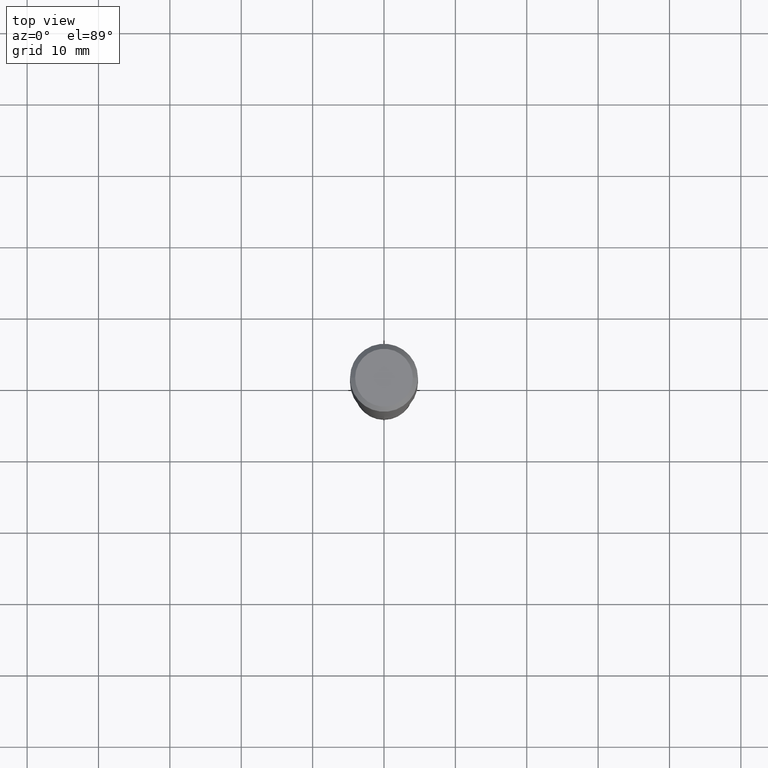
[diagram: clean part render]
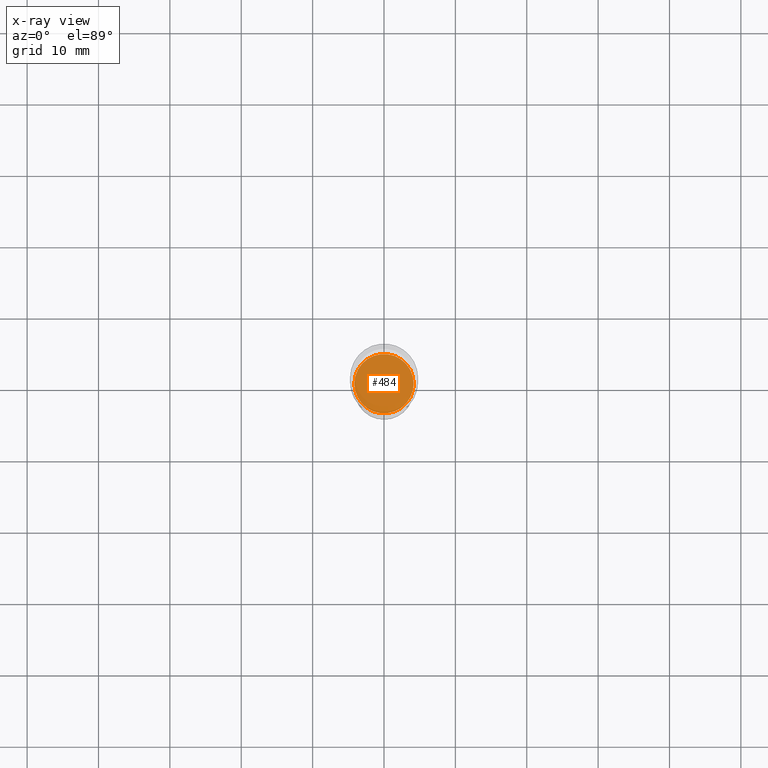
[diagram: x-ray — body ghosted, one internal face saturated and labeled with its STEP entity id]
A machine part, top view, then the same camera in x-ray: the body is ghosted and one INTERNAL B-rep face — a face not visible from any outside direction — is saturated and labeled: STEP entity #484.
In plain terms, the highlighted planar face has unit normal (-0, 0, 1).
Its self-contained STEP definition (entity closure, byte-faithful):
#30 = EDGE_CURVE ( 'NONE', #293, #356, #195, .T. ) ;
#44 = CARTESIAN_POINT ( 'NONE',  ( 4.699946498607213813E-29, -6.710277985122640475E-15, -1.921899999999999720 ) ) ;
#46 = CARTESIAN_POINT ( 'NONE',  ( 0.1635500000000000009, -7.852341531058229130E-15, -1.921899999999999720 ) ) ;
#64 = CARTESIAN_POINT ( 'NONE',  ( -0.1635500000000000009, -5.545536113612885610E-15, -1.921899999999999720 ) ) ;
#71 = DIRECTION ( 'NONE',  ( -2.438088387897960049E-29, 3.491481338843145188E-15, 1.000000000000000000 ) ) ;
#74 = CARTESIAN_POINT ( 'NONE',  ( 4.699946498607213813E-29, -6.710277985122640475E-15, -1.921899999999999720 ) ) ;
#105 = CIRCLE ( 'NONE', #315, 0.1635500000000000009 ) ;
#152 = EDGE_CURVE ( 'NONE', #356, #293, #105, .T. ) ;
#154 = DIRECTION ( 'NONE',  ( 1.000000000000000000, -6.982962677686265922E-15, 4.876176775795935793E-29 ) ) ;
#180 = PLANE ( 'NONE',  #351 ) ;
#187 = FACE_OUTER_BOUND ( 'NONE', #256, .T. ) ;
#195 = CIRCLE ( 'NONE', #393, 0.1635500000000000009 ) ;
#226 = ORIENTED_EDGE ( 'NONE', *, *, #30, .F. ) ;
#233 = DIRECTION ( 'NONE',  ( -2.445468806185136597E-29, 3.491481338843145583E-15, 1.000000000000000000 ) ) ;
#240 = DIRECTION ( 'NONE',  ( 1.000000000000000000, -6.982962677686265922E-15, 0.000000000000000000 ) ) ;
#256 = EDGE_LOOP ( 'NONE', ( #226, #427 ) ) ;
#272 = DIRECTION ( 'NONE',  ( -2.445468806185136597E-29, 3.491481338843145583E-15, 1.000000000000000000 ) ) ;
#293 = VERTEX_POINT ( 'NONE', #46 ) ;
#315 = AXIS2_PLACEMENT_3D ( 'NONE', #44, #272, #240 ) ;
#337 = DIRECTION ( 'NONE',  ( 1.000000000000000000, -6.982962677686265922E-15, 0.000000000000000000 ) ) ;
#351 = AXIS2_PLACEMENT_3D ( 'NONE', #444, #71, #154 ) ;
#356 = VERTEX_POINT ( 'NONE', #64 ) ;
#393 = AXIS2_PLACEMENT_3D ( 'NONE', #74, #233, #337 ) ;
#427 = ORIENTED_EDGE ( 'NONE', *, *, #152, .F. ) ;
#444 = CARTESIAN_POINT ( 'NONE',  ( 4.699946498607213813E-29, -6.710277985122640475E-15, -1.921899999999999720 ) ) ;
#484 = ADVANCED_FACE ( 'NONE', ( #187 ), #180, .F. ) ;